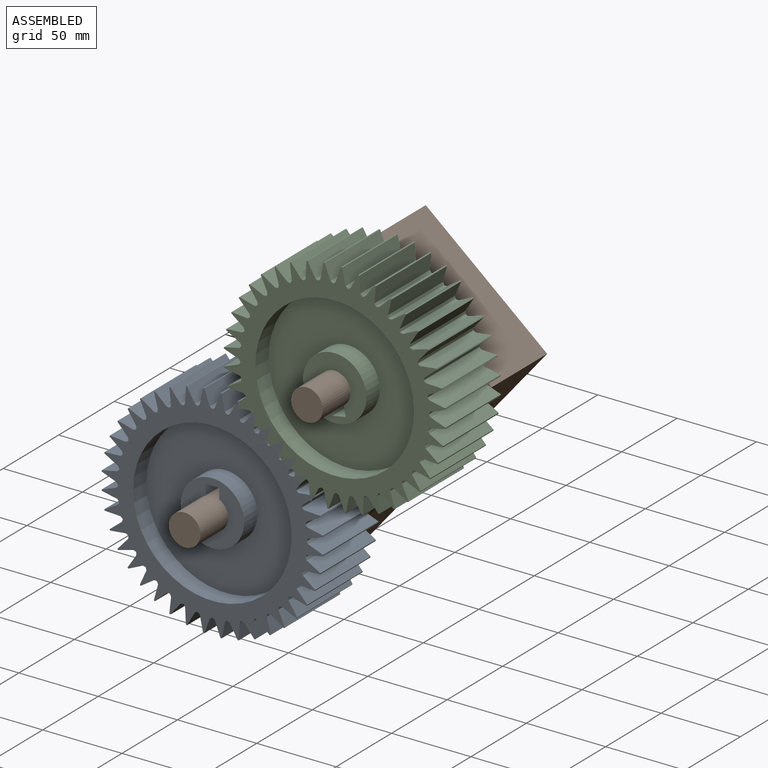
[diagram: assembled view]
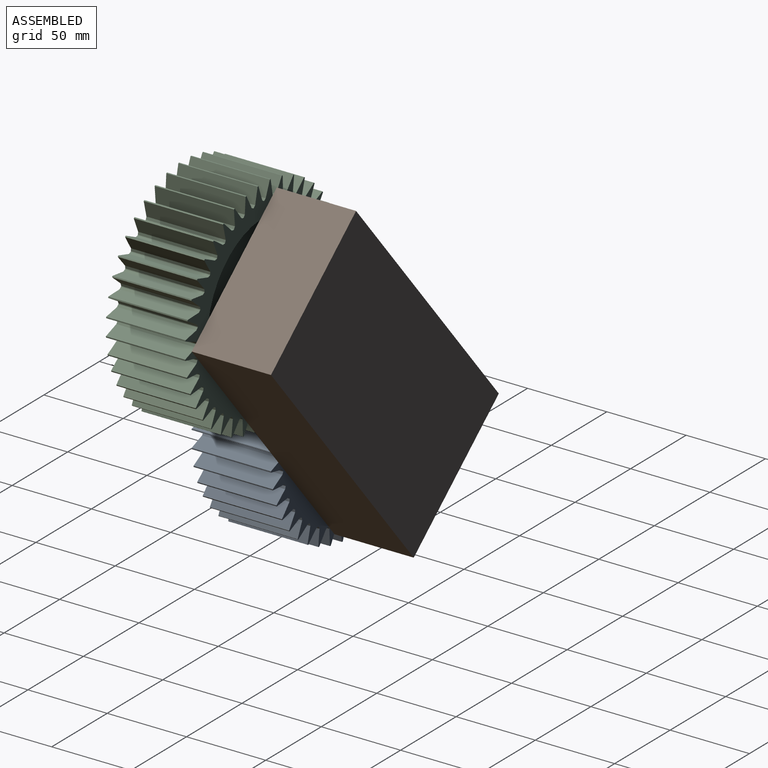
[diagram: assembled view, second angle]
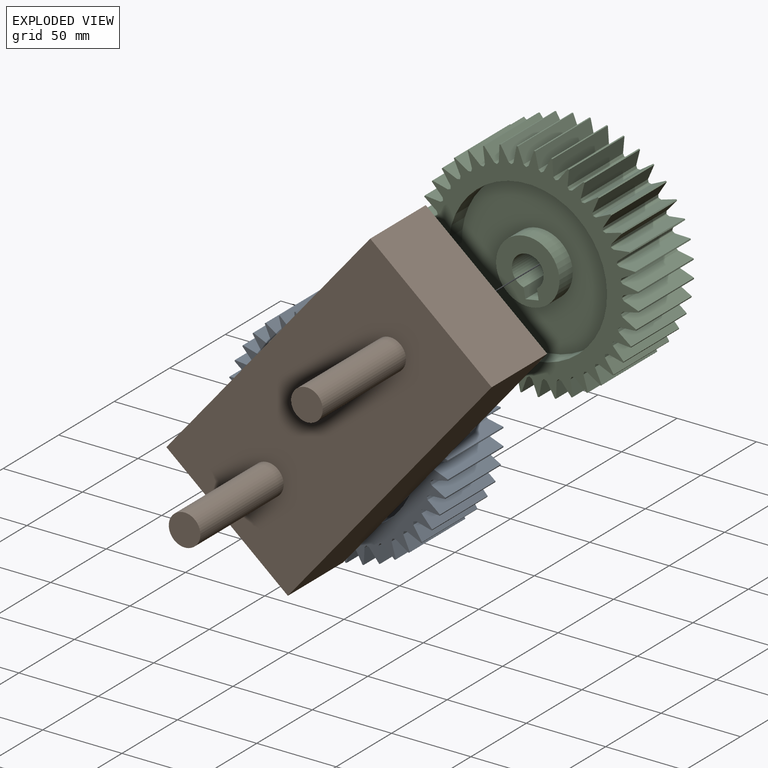
[diagram: exploded view]
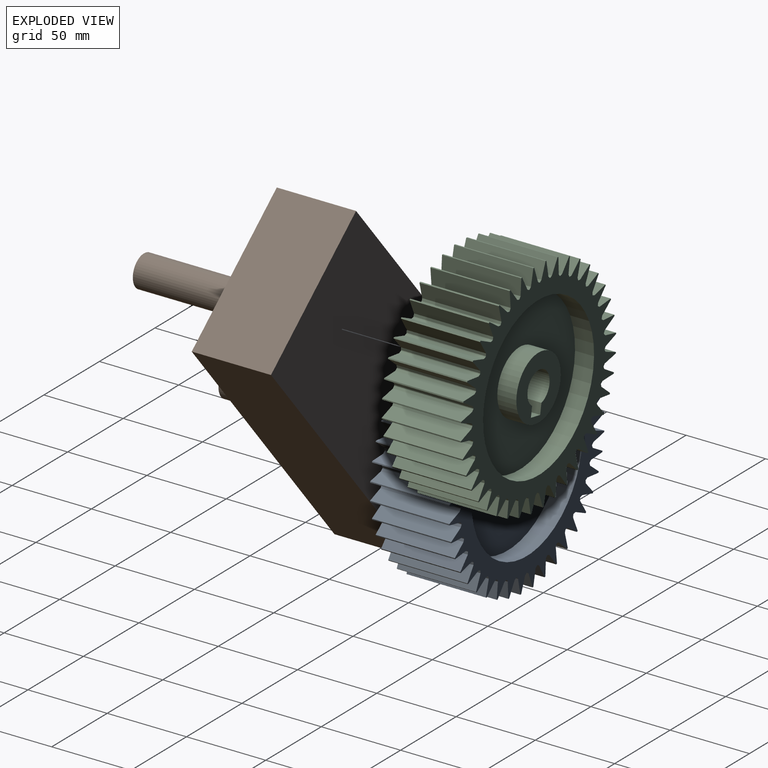
[diagram: exploded view, second angle]
ASSEMBLY  parts=3 mates=2
PART A: 254 faces, bbox 50x139.6x139.6 mm
  f0: plane 40x40mm, normal (-1,0,0), area 892.4mm2, adj f1,f238,f251,f252,f253
  f1: cylinder r=10mm len=50mm, axis (-1,0,0), area 2701.8mm2, adj f0,f245,f252,f253
  f2: cylinder r=70mm len=50mm, axis (-1,0,0), area 37.6mm2, adj f6,f236,f241,f246
  f3: plane 50x1.19mm, normal (0,0.69,-0.72), area 82.3mm2, adj f6,f7,f236,f241
  f4: plane 50x1.48mm, normal (0,-0.43,-0.9), area 82.3mm2, adj f5,f7,f236,f241
  f5: plane 50x8.7mm, normal (0,-0.87,-0.5), area 501.3mm2, adj f4,f8,f236,f241
  f6: plane 50x9.82mm, normal (0,0.98,-0.2), area 501.3mm2, adj f2,f3,f236,f241
  f7: plane 50x0.41mm, normal (0,0.16,-0.99), area 21mm2, adj f3,f4,f236,f241
  f8: cylinder r=70mm len=50mm, axis (-1,0,0), area 37.6mm2, adj f5,f12,f236,f241
  f9: plane 50x1.31mm, normal (0,0.79,-0.61), area 82.3mm2, adj f12,f13,f236,f241
  f10: plane 50x1.58mm, normal (0,-0.29,-0.96), area 82.3mm2, adj f11,f13,f236,f241
  f11: plane 50x7.82mm, normal (0,-0.78,-0.63), area 501.3mm2, adj f10,f14,f236,f241
  f12: plane 50x10.01mm, normal (0,1,-0.05), area 501.3mm2, adj f8,f9,f236,f241
  f13: plane 50x0.4mm, normal (0,0.31,-0.95), area 21mm2, adj f9,f10,f236,f241
  f14: cylinder r=70mm len=50mm, axis (-1,0,0), area 37.6mm2, adj f11,f18,f236,f241
  f15: plane 50x1.45mm, normal (0,0.88,-0.48), area 82.3mm2, adj f18,f19,f236,f241
  f16: plane 50x1.63mm, normal (0,-0.13,-0.99), area 82.3mm2, adj f17,f19,f236,f241
  f17: plane 50x7.42mm, normal (0,-0.67,-0.74), area 501.3mm2, adj f16,f20,f236,f241
  f18: plane 50x9.97mm, normal (0,0.99,0.11), area 501.3mm2, adj f14,f15,f236,f241
  f19: plane 50x0.37mm, normal (0,0.45,-0.89), area 21mm2, adj f15,f16,f236,f241
  f20: cylinder r=70mm len=50mm, axis (-1,0,0), area 37.6mm2, adj f17,f24,f236,f241
  f21: plane 50x1.55mm, normal (0,0.94,-0.33), area 82.3mm2, adj f24,f25,f236,f241
  f22: plane 50x1.65mm, normal (0,0.02,-1), area 82.3mm2, adj f23,f25,f236,f241
  f23: plane 50x8.39mm, normal (0,-0.55,-0.84), area 501.3mm2, adj f22,f26,f236,f241
  f24: plane 50x9.67mm, normal (0,0.96,0.26), area 501.3mm2, adj f20,f21,f236,f241
  f25: plane 50x0.34mm, normal (0,0.59,-0.81), area 21mm2, adj f21,f22,f236,f241
  f26: cylinder r=70mm len=50mm, axis (-1,0,0), area 37.6mm2, adj f23,f30,f236,f241
  f27: plane 50x1.62mm, normal (0,0.98,-0.18), area 82.3mm2, adj f30,f31,f236,f241
  f28: plane 50x1.62mm, normal (0,0.18,-0.98), area 82.3mm2, adj f29,f31,f236,f241
  f29: plane 50x9.14mm, normal (0,-0.41,-0.91), area 501.3mm2, adj f28,f32,f236,f241
  f30: plane 50x9.14mm, normal (0,0.91,0.41), area 501.3mm2, adj f26,f27,f236,f241
  f31: plane 50x0.3mm, normal (0,0.71,-0.71), area 21mm2, adj f27,f28,f236,f241
  f32: cylinder r=70mm len=50mm, axis (-1,0,0), area 37.6mm2, adj f29,f36,f236,f241
  f33: plane 50x1.65mm, normal (0,1,-0.02), area 82.3mm2, adj f36,f37,f236,f241
  f34: plane 50x1.55mm, normal (0,0.33,-0.94), area 82.3mm2, adj f35,f37,f236,f241
  f35: plane 50x9.67mm, normal (0,-0.26,-0.96), area 501.3mm2, adj f34,f38,f236,f241
  f36: plane 50x8.39mm, normal (0,0.84,0.55), area 501.3mm2, adj f32,f33,f236,f241
  f37: plane 50x0.34mm, normal (0,0.81,-0.59), area 21mm2, adj f33,f34,f236,f241
  f38: cylinder r=70mm len=50mm, axis (-1,0,0), area 37.6mm2, adj f35,f42,f236,f241
  f39: plane 50x1.63mm, normal (0,0.99,0.13), area 82.3mm2, adj f42,f43,f236,f241
  f40: plane 50x1.45mm, normal (0,0.48,-0.88), area 82.3mm2, adj f41,f43,f236,f241
  f41: plane 50x9.97mm, normal (0,-0.11,-0.99), area 501.3mm2, adj f40,f44,f236,f241
  f42: plane 50x7.42mm, normal (0,0.74,0.67), area 501.3mm2, adj f38,f39,f236,f241
  f43: plane 50x0.37mm, normal (0,0.89,-0.45), area 21mm2, adj f39,f40,f236,f241
  f44: cylinder r=70mm len=50mm, axis (-1,0,0), area 37.6mm2, adj f41,f48,f236,f241
  f45: plane 50x1.58mm, normal (0,0.96,0.29), area 82.3mm2, adj f48,f49,f236,f241
  f46: plane 50x1.31mm, normal (0,0.61,-0.79), area 82.3mm2, adj f47,f49,f236,f241
  f47: plane 50x10.01mm, normal (0,0.05,-1), area 501.3mm2, adj f46,f50,f236,f241
  f48: plane 50x7.82mm, normal (0,0.63,0.78), area 501.3mm2, adj f44,f45,f236,f241
  f49: plane 50x0.4mm, normal (0,0.95,-0.31), area 21mm2, adj f45,f46,f236,f241
  f50: cylinder r=70mm len=50mm, axis (-1,0,0), area 37.6mm2, adj f47,f54,f236,f241
  f51: plane 50x1.48mm, normal (0,0.9,0.43), area 82.3mm2, adj f54,f55,f236,f241
  f52: plane 50x1.19mm, normal (0,0.72,-0.69), area 82.3mm2, adj f53,f55,f236,f241
  f53: plane 50x9.82mm, normal (0,0.2,-0.98), area 501.3mm2, adj f52,f56,f236,f241
  f54: plane 50x8.7mm, normal (0,0.5,0.87), area 501.3mm2, adj f50,f51,f236,f241
  f55: plane 50x0.41mm, normal (0,0.99,-0.16), area 21mm2, adj f51,f52,f236,f241
  f56: cylinder r=70mm len=50mm, axis (-1,0,0), area 37.6mm2, adj f53,f60,f236,f241
  f57: plane 50x1.35mm, normal (0,0.82,0.57), area 82.3mm2, adj f60,f61,f236,f241
  f58: plane 50x1.35mm, normal (0,0.82,-0.57), area 82.3mm2, adj f59,f61,f236,f241
  f59: plane 50x9.37mm, normal (0,0.35,-0.94), area 501.3mm2, adj f58,f62,f236,f241
  f60: plane 50x9.37mm, normal (0,0.35,0.94), area 501.3mm2, adj f56,f57,f236,f241
  f61: plane 50x0.42mm, normal (0,1,0), area 21mm2, adj f57,f58,f236,f241
  f62: cylinder r=70mm len=50mm, axis (-1,0,0), area 37.6mm2, adj f59,f66,f236,f241
  f63: plane 50x1.19mm, normal (0,0.72,0.69), area 82.3mm2, adj f66,f67,f236,f241
  f64: plane 50x1.48mm, normal (0,0.9,-0.43), area 82.3mm2, adj f65,f67,f236,f241
  f65: plane 50x8.7mm, normal (0,0.5,-0.87), area 501.3mm2, adj f64,f68,f236,f241
  f66: plane 50x9.82mm, normal (0,0.2,0.98), area 501.3mm2, adj f62,f63,f236,f241
  f67: plane 50x0.41mm, normal (0,0.99,0.16), area 21mm2, adj f63,f64,f236,f241
  f68: cylinder r=70mm len=50mm, axis (-1,0,0), area 37.6mm2, adj f65,f72,f236,f241
  f69: plane 50x1.31mm, normal (0,0.61,0.79), area 82.3mm2, adj f72,f73,f236,f241
  f70: plane 50x1.58mm, normal (0,0.96,-0.29), area 82.3mm2, adj f71,f73,f236,f241
  f71: plane 50x7.82mm, normal (0,0.63,-0.78), area 501.3mm2, adj f70,f74,f236,f241
  f72: plane 50x10.01mm, normal (0,0.05,1), area 501.3mm2, adj f68,f69,f236,f241
  f73: plane 50x0.4mm, normal (0,0.95,0.31), area 21mm2, adj f69,f70,f236,f241
  f74: cylinder r=70mm len=50mm, axis (-1,0,0), area 37.6mm2, adj f71,f78,f236,f241
  f75: plane 50x1.45mm, normal (0,0.48,0.88), area 82.3mm2, adj f78,f79,f236,f241
  f76: plane 50x1.63mm, normal (0,0.99,-0.13), area 82.3mm2, adj f77,f79,f236,f241
  f77: plane 50x7.42mm, normal (0,0.74,-0.67), area 501.3mm2, adj f76,f80,f236,f241
  f78: plane 50x9.97mm, normal (0,-0.11,0.99), area 501.3mm2, adj f74,f75,f236,f241
  f79: plane 50x0.37mm, normal (0,0.89,0.45), area 21mm2, adj f75,f76,f236,f241
  f80: cylinder r=70mm len=50mm, axis (-1,0,0), area 37.6mm2, adj f77,f84,f236,f241
  f81: plane 50x1.55mm, normal (0,0.33,0.94), area 82.3mm2, adj f84,f85,f236,f241
  f82: plane 50x1.65mm, normal (0,1,0.02), area 82.3mm2, adj f83,f85,f236,f241
  f83: plane 50x8.39mm, normal (0,0.84,-0.55), area 501.3mm2, adj f82,f86,f236,f241
  f84: plane 50x9.67mm, normal (0,-0.26,0.96), area 501.3mm2, adj f80,f81,f236,f241
  f85: plane 50x0.34mm, normal (0,0.81,0.59), area 21mm2, adj f81,f82,f236,f241
  f86: cylinder r=70mm len=50mm, axis (-1,0,0), area 37.6mm2, adj f83,f90,f236,f241
  f87: plane 50x1.62mm, normal (0,0.18,0.98), area 82.3mm2, adj f90,f91,f236,f241
  f88: plane 50x1.62mm, normal (0,0.98,0.18), area 82.3mm2, adj f89,f91,f236,f241
  f89: plane 50x9.14mm, normal (0,0.91,-0.41), area 501.3mm2, adj f88,f92,f236,f241
  f90: plane 50x9.14mm, normal (0,-0.41,0.91), area 501.3mm2, adj f86,f87,f236,f241
  f91: plane 50x0.3mm, normal (0,0.71,0.71), area 21mm2, adj f87,f88,f236,f241
  f92: cylinder r=70mm len=50mm, axis (-1,0,0), area 37.6mm2, adj f89,f96,f236,f241
  f93: plane 50x1.65mm, normal (0,0.02,1), area 82.3mm2, adj f96,f97,f236,f241
  f94: plane 50x1.55mm, normal (0,0.94,0.33), area 82.3mm2, adj f95,f97,f236,f241
  f95: plane 50x9.67mm, normal (0,0.96,-0.26), area 501.3mm2, adj f94,f98,f236,f241
  f96: plane 50x8.39mm, normal (0,-0.55,0.84), area 501.3mm2, adj f92,f93,f236,f241
  f97: plane 50x0.34mm, normal (0,0.59,0.81), area 21mm2, adj f93,f94,f236,f241
  f98: cylinder r=70mm len=50mm, axis (-1,0,0), area 37.6mm2, adj f95,f102,f236,f241
  f99: plane 50x1.63mm, normal (0,-0.13,0.99), area 82.3mm2, adj f102,f103,f236,f241
  f100: plane 50x1.45mm, normal (0,0.88,0.48), area 82.3mm2, adj f101,f103,f236,f241
  f101: plane 50x9.97mm, normal (0,0.99,-0.11), area 501.3mm2, adj f100,f104,f236,f241
  f102: plane 50x7.42mm, normal (0,-0.67,0.74), area 501.3mm2, adj f98,f99,f236,f241
  f103: plane 50x0.37mm, normal (0,0.45,0.89), area 21mm2, adj f99,f100,f236,f241
  f104: cylinder r=70mm len=50mm, axis (-1,0,0), area 37.6mm2, adj f101,f108,f236,f241
  f105: plane 50x1.58mm, normal (0,-0.29,0.96), area 82.3mm2, adj f108,f109,f236,f241
  f106: plane 50x1.31mm, normal (0,0.79,0.61), area 82.3mm2, adj f107,f109,f236,f241
  f107: plane 50x10.01mm, normal (0,1,0.05), area 501.3mm2, adj f106,f110,f236,f241
  f108: plane 50x7.82mm, normal (0,-0.78,0.63), area 501.3mm2, adj f104,f105,f236,f241
  f109: plane 50x0.4mm, normal (0,0.31,0.95), area 21mm2, adj f105,f106,f236,f241
  f110: cylinder r=70mm len=50mm, axis (-1,0,0), area 37.6mm2, adj f107,f114,f236,f241
  f111: plane 50x1.48mm, normal (0,-0.43,0.9), area 82.3mm2, adj f114,f115,f236,f241
  f112: plane 50x1.19mm, normal (0,0.69,0.72), area 82.3mm2, adj f113,f115,f236,f241
  f113: plane 50x9.82mm, normal (0,0.98,0.2), area 501.3mm2, adj f112,f116,f236,f241
  f114: plane 50x8.7mm, normal (0,-0.87,0.5), area 501.3mm2, adj f110,f111,f236,f241
  f115: plane 50x0.41mm, normal (0,0.16,0.99), area 21mm2, adj f111,f112,f236,f241
  f116: cylinder r=70mm len=50mm, axis (-1,0,0), area 37.6mm2, adj f113,f120,f236,f241
  f117: plane 50x1.35mm, normal (0,-0.57,0.82), area 82.3mm2, adj f120,f121,f236,f241
  f118: plane 50x1.35mm, normal (0,0.57,0.82), area 82.3mm2, adj f119,f121,f236,f241
  f119: plane 50x9.37mm, normal (0,0.94,0.35), area 501.3mm2, adj f118,f122,f236,f241
  f120: plane 50x9.37mm, normal (0,-0.94,0.35), area 501.3mm2, adj f116,f117,f236,f241
  f121: plane 50x0.42mm, normal (0,0,1), area 21mm2, adj f117,f118,f236,f241
  f122: cylinder r=70mm len=50mm, axis (-1,0,0), area 37.6mm2, adj f119,f126,f236,f241
  f123: plane 50x1.19mm, normal (0,-0.69,0.72), area 82.3mm2, adj f126,f127,f236,f241
  f124: plane 50x1.48mm, normal (0,0.43,0.9), area 82.3mm2, adj f125,f127,f236,f241
  f125: plane 50x8.7mm, normal (0,0.87,0.5), area 501.3mm2, adj f124,f128,f236,f241
  f126: plane 50x9.82mm, normal (0,-0.98,0.2), area 501.3mm2, adj f122,f123,f236,f241
  f127: plane 50x0.41mm, normal (0,-0.16,0.99), area 21mm2, adj f123,f124,f236,f241
  f128: cylinder r=70mm len=50mm, axis (-1,0,0), area 37.6mm2, adj f125,f132,f236,f241
  f129: plane 50x1.31mm, normal (0,-0.79,0.61), area 82.3mm2, adj f132,f133,f236,f241
  f130: plane 50x1.58mm, normal (0,0.29,0.96), area 82.3mm2, adj f131,f133,f236,f241
  f131: plane 50x7.82mm, normal (0,0.78,0.63), area 501.3mm2, adj f130,f134,f236,f241
  f132: plane 50x10.01mm, normal (0,-1,0.05), area 501.3mm2, adj f128,f129,f236,f241
  f133: plane 50x0.4mm, normal (0,-0.31,0.95), area 21mm2, adj f129,f130,f236,f241
  f134: cylinder r=70mm len=50mm, axis (-1,0,0), area 37.6mm2, adj f131,f138,f236,f241
  f135: plane 50x1.45mm, normal (0,-0.88,0.48), area 82.3mm2, adj f138,f139,f236,f241
  f136: plane 50x1.63mm, normal (0,0.13,0.99), area 82.3mm2, adj f137,f139,f236,f241
  f137: plane 50x7.42mm, normal (0,0.67,0.74), area 501.3mm2, adj f136,f140,f236,f241
  f138: plane 50x9.97mm, normal (0,-0.99,-0.11), area 501.3mm2, adj f134,f135,f236,f241
  f139: plane 50x0.37mm, normal (0,-0.45,0.89), area 21mm2, adj f135,f136,f236,f241
  f140: cylinder r=70mm len=50mm, axis (-1,0,0), area 37.6mm2, adj f137,f144,f236,f241
  f141: plane 50x1.55mm, normal (0,-0.94,0.33), area 82.3mm2, adj f144,f145,f236,f241
  f142: plane 50x1.65mm, normal (0,-0.02,1), area 82.3mm2, adj f143,f145,f236,f241
  f143: plane 50x8.39mm, normal (0,0.55,0.84), area 501.3mm2, adj f142,f146,f236,f241
  f144: plane 50x9.67mm, normal (0,-0.96,-0.26), area 501.3mm2, adj f140,f141,f236,f241
  f145: plane 50x0.34mm, normal (0,-0.59,0.81), area 21mm2, adj f141,f142,f236,f241
  f146: cylinder r=70mm len=50mm, axis (-1,0,0), area 37.6mm2, adj f143,f150,f236,f241
  f147: plane 50x1.62mm, normal (0,-0.98,0.18), area 82.3mm2, adj f150,f151,f236,f241
  f148: plane 50x1.62mm, normal (0,-0.18,0.98), area 82.3mm2, adj f149,f151,f236,f241
  f149: plane 50x9.14mm, normal (0,0.41,0.91), area 501.3mm2, adj f148,f152,f236,f241
  f150: plane 50x9.14mm, normal (0,-0.91,-0.41), area 501.3mm2, adj f146,f147,f236,f241
  f151: plane 50x0.3mm, normal (0,-0.71,0.71), area 21mm2, adj f147,f148,f236,f241
  f152: cylinder r=70mm len=50mm, axis (-1,0,0), area 37.6mm2, adj f149,f156,f236,f241
  f153: plane 50x1.65mm, normal (0,-1,0.02), area 82.3mm2, adj f156,f157,f236,f241
  f154: plane 50x1.55mm, normal (0,-0.33,0.94), area 82.3mm2, adj f155,f157,f236,f241
  f155: plane 50x9.67mm, normal (0,0.26,0.96), area 501.3mm2, adj f154,f158,f236,f241
  f156: plane 50x8.39mm, normal (0,-0.84,-0.55), area 501.3mm2, adj f152,f153,f236,f241
  f157: plane 50x0.34mm, normal (0,-0.81,0.59), area 21mm2, adj f153,f154,f236,f241
  f158: cylinder r=70mm len=50mm, axis (-1,0,0), area 37.6mm2, adj f155,f162,f236,f241
  f159: plane 50x1.63mm, normal (0,-0.99,-0.13), area 82.3mm2, adj f162,f163,f236,f241
  f160: plane 50x1.45mm, normal (0,-0.48,0.88), area 82.3mm2, adj f161,f163,f236,f241
  f161: plane 50x9.97mm, normal (0,0.11,0.99), area 501.3mm2, adj f160,f164,f236,f241
  f162: plane 50x7.42mm, normal (0,-0.74,-0.67), area 501.3mm2, adj f158,f159,f236,f241
  f163: plane 50x0.37mm, normal (0,-0.89,0.45), area 21mm2, adj f159,f160,f236,f241
  f164: cylinder r=70mm len=50mm, axis (-1,0,0), area 37.6mm2, adj f161,f168,f236,f241
  f165: plane 50x1.58mm, normal (0,-0.96,-0.29), area 82.3mm2, adj f168,f169,f236,f241
  f166: plane 50x1.31mm, normal (0,-0.61,0.79), area 82.3mm2, adj f167,f169,f236,f241
  f167: plane 50x10.01mm, normal (0,-0.05,1), area 501.3mm2, adj f166,f170,f236,f241
  f168: plane 50x7.82mm, normal (0,-0.63,-0.78), area 501.3mm2, adj f164,f165,f236,f241
  f169: plane 50x0.4mm, normal (0,-0.95,0.31), area 21mm2, adj f165,f166,f236,f241
  f170: cylinder r=70mm len=50mm, axis (-1,0,0), area 37.6mm2, adj f167,f174,f236,f241
  f171: plane 50x1.48mm, normal (0,-0.9,-0.43), area 82.3mm2, adj f174,f175,f236,f241
  f172: plane 50x1.19mm, normal (0,-0.72,0.69), area 82.3mm2, adj f173,f175,f236,f241
  f173: plane 50x9.82mm, normal (0,-0.2,0.98), area 501.3mm2, adj f172,f176,f236,f241
  f174: plane 50x8.7mm, normal (0,-0.5,-0.87), area 501.3mm2, adj f170,f171,f236,f241
  f175: plane 50x0.41mm, normal (0,-0.99,0.16), area 21mm2, adj f171,f172,f236,f241
  f176: cylinder r=70mm len=50mm, axis (-1,0,0), area 37.6mm2, adj f173,f180,f236,f241
  f177: plane 50x1.35mm, normal (0,-0.82,-0.57), area 82.3mm2, adj f180,f181,f236,f241
  f178: plane 50x1.35mm, normal (0,-0.82,0.57), area 82.3mm2, adj f179,f181,f236,f241
  f179: plane 50x9.37mm, normal (0,-0.35,0.94), area 501.3mm2, adj f178,f182,f236,f241
  f180: plane 50x9.37mm, normal (0,-0.35,-0.94), area 501.3mm2, adj f176,f177,f236,f241
  f181: plane 50x0.42mm, normal (0,-1,0), area 21mm2, adj f177,f178,f236,f241
  f182: cylinder r=70mm len=50mm, axis (-1,0,0), area 37.6mm2, adj f179,f186,f236,f241
  f183: plane 50x1.19mm, normal (0,-0.72,-0.69), area 82.3mm2, adj f186,f187,f236,f241
  f184: plane 50x1.48mm, normal (0,-0.9,0.43), area 82.3mm2, adj f185,f187,f236,f241
  f185: plane 50x8.7mm, normal (0,-0.5,0.87), area 501.3mm2, adj f184,f188,f236,f241
  f186: plane 50x9.82mm, normal (0,-0.2,-0.98), area 501.3mm2, adj f182,f183,f236,f241
  f187: plane 50x0.41mm, normal (0,-0.99,-0.16), area 21mm2, adj f183,f184,f236,f241
  f188: cylinder r=70mm len=50mm, axis (-1,0,0), area 37.6mm2, adj f185,f192,f236,f241
  f189: plane 50x1.31mm, normal (0,-0.61,-0.79), area 82.3mm2, adj f192,f193,f236,f241
  f190: plane 50x1.58mm, normal (0,-0.96,0.29), area 82.3mm2, adj f191,f193,f236,f241
  f191: plane 50x7.82mm, normal (0,-0.63,0.78), area 501.3mm2, adj f190,f194,f236,f241
  f192: plane 50x10.01mm, normal (0,-0.05,-1), area 501.3mm2, adj f188,f189,f236,f241
  f193: plane 50x0.4mm, normal (0,-0.95,-0.31), area 21mm2, adj f189,f190,f236,f241
  f194: cylinder r=70mm len=50mm, axis (-1,0,0), area 37.6mm2, adj f191,f198,f236,f241
  f195: plane 50x1.45mm, normal (0,-0.48,-0.88), area 82.3mm2, adj f198,f199,f236,f241
  f196: plane 50x1.63mm, normal (0,-0.99,0.13), area 82.3mm2, adj f197,f199,f236,f241
  f197: plane 50x7.42mm, normal (0,-0.74,0.67), area 501.3mm2, adj f196,f200,f236,f241
  f198: plane 50x9.97mm, normal (0,0.11,-0.99), area 501.3mm2, adj f194,f195,f236,f241
  f199: plane 50x0.37mm, normal (0,-0.89,-0.45), area 21mm2, adj f195,f196,f236,f241
  f200: cylinder r=70mm len=50mm, axis (-1,0,0), area 37.6mm2, adj f197,f204,f236,f241
  f201: plane 50x1.55mm, normal (0,-0.33,-0.94), area 82.3mm2, adj f204,f205,f236,f241
  f202: plane 50x1.65mm, normal (0,-1,-0.02), area 82.3mm2, adj f203,f205,f236,f241
  f203: plane 50x8.39mm, normal (0,-0.84,0.55), area 501.3mm2, adj f202,f206,f236,f241
  f204: plane 50x9.67mm, normal (0,0.26,-0.96), area 501.3mm2, adj f200,f201,f236,f241
  f205: plane 50x0.34mm, normal (0,-0.81,-0.59), area 21mm2, adj f201,f202,f236,f241
  f206: cylinder r=70mm len=50mm, axis (-1,0,0), area 37.6mm2, adj f203,f210,f236,f241
  f207: plane 50x1.62mm, normal (0,-0.18,-0.98), area 82.3mm2, adj f210,f211,f236,f241
  f208: plane 50x1.62mm, normal (0,-0.98,-0.18), area 82.3mm2, adj f209,f211,f236,f241
  f209: plane 50x9.14mm, normal (0,-0.91,0.41), area 501.3mm2, adj f208,f212,f236,f241
  f210: plane 50x9.14mm, normal (0,0.41,-0.91), area 501.3mm2, adj f206,f207,f236,f241
  f211: plane 50x0.3mm, normal (0,-0.71,-0.71), area 21mm2, adj f207,f208,f236,f241
  f212: cylinder r=70mm len=50mm, axis (-1,0,0), area 37.6mm2, adj f209,f216,f236,f241
  f213: plane 50x1.65mm, normal (0,-0.02,-1), area 82.3mm2, adj f216,f217,f236,f241
  f214: plane 50x1.55mm, normal (0,-0.94,-0.33), area 82.3mm2, adj f215,f217,f236,f241
  f215: plane 50x9.67mm, normal (0,-0.96,0.26), area 501.3mm2, adj f214,f218,f236,f241
  f216: plane 50x8.39mm, normal (0,0.55,-0.84), area 501.3mm2, adj f212,f213,f236,f241
  f217: plane 50x0.34mm, normal (0,-0.59,-0.81), area 21mm2, adj f213,f214,f236,f241
  f218: cylinder r=70mm len=50mm, axis (-1,0,0), area 37.6mm2, adj f215,f222,f236,f241
  f219: plane 50x1.63mm, normal (0,0.13,-0.99), area 82.3mm2, adj f222,f223,f236,f241
  f220: plane 50x1.45mm, normal (0,-0.88,-0.48), area 82.3mm2, adj f221,f223,f236,f241
  f221: plane 50x9.97mm, normal (0,-0.99,0.11), area 501.3mm2, adj f220,f224,f236,f241
  f222: plane 50x7.42mm, normal (0,0.67,-0.74), area 501.3mm2, adj f218,f219,f236,f241
  f223: plane 50x0.37mm, normal (0,-0.45,-0.89), area 21mm2, adj f219,f220,f236,f241
  f224: cylinder r=70mm len=50mm, axis (-1,0,0), area 37.6mm2, adj f221,f228,f236,f241
  f225: plane 50x1.58mm, normal (0,0.29,-0.96), area 82.3mm2, adj f228,f229,f236,f241
  f226: plane 50x1.31mm, normal (0,-0.79,-0.61), area 82.3mm2, adj f227,f229,f236,f241
  f227: plane 50x10.01mm, normal (0,-1,-0.05), area 501.3mm2, adj f226,f230,f236,f241
  f228: plane 50x7.82mm, normal (0,0.78,-0.63), area 501.3mm2, adj f224,f225,f236,f241
  f229: plane 50x0.4mm, normal (0,-0.31,-0.95), area 21mm2, adj f225,f226,f236,f241
  f230: cylinder r=70mm len=50mm, axis (-1,0,0), area 37.6mm2, adj f227,f234,f236,f241
  f231: plane 50x1.48mm, normal (0,0.43,-0.9), area 82.3mm2, adj f234,f235,f236,f241
  f232: plane 50x1.19mm, normal (0,-0.69,-0.72), area 82.3mm2, adj f233,f235,f236,f241
  f233: plane 50x9.82mm, normal (0,-0.98,-0.2), area 501.3mm2, adj f232,f236,f237,f241
  f234: plane 50x8.7mm, normal (0,0.87,-0.5), area 501.3mm2, adj f230,f231,f236,f241
  f235: plane 50x0.41mm, normal (0,-0.16,-0.99), area 21mm2, adj f231,f232,f236,f241
  f236: plane 139.63x139.63mm, normal (-1,0,0), area 4916.8mm2, adj f2,f3,f4,f5,f6,f7,f8,f9
  f237: cylinder r=70mm len=50mm, axis (-1,0,0), area 37.6mm2, adj f233,f236,f241,f247
  f238: cylinder r=20mm len=40mm, axis (-1,0,0), area 1508mm2, adj f0,f239
  f239: plane 100x100mm, normal (-1,0,0), area 6597.3mm2, adj f238,f240
  f240: cylinder r=50mm len=100mm, axis (-1,0,0), area 3769.9mm2, adj f236,f239
  f241: plane 139.63x139.63mm, normal (1,0,0), area 4916.8mm2, adj f2,f3,f4,f5,f6,f7,f8,f9
  f242: cylinder r=50mm len=100mm, axis (-1,0,0), area 3769.9mm2, adj f241,f243
  f243: plane 100x100mm, normal (1,0,0), area 6597.3mm2, adj f242,f244
  f244: cylinder r=20mm len=40mm, axis (-1,0,0), area 1508mm2, adj f243,f245
  f245: plane 40x40mm, normal (1,0,0), area 892.4mm2, adj f1,f244,f251,f252,f253
  f246: plane 50x9.37mm, normal (0,-0.94,-0.35), area 501.3mm2, adj f2,f236,f241,f249
  f247: plane 50x9.37mm, normal (0,0.94,-0.35), area 501.3mm2, adj f236,f237,f241,f250
  f248: plane 50x0.42mm, normal (0,0,-1), area 21mm2, adj f236,f241,f249,f250
  f249: plane 50x1.35mm, normal (0,-0.57,-0.82), area 82.3mm2, adj f236,f241,f246,f248
  f250: plane 50x1.35mm, normal (0,0.57,-0.82), area 82.3mm2, adj f236,f241,f247,f248
  f251: plane 50x8.52mm, normal (0,-1,0), area 425.8mm2, adj f0,f245,f252,f253
  f252: plane 50x6.52mm, normal (0,0,1), area 325.9mm2, adj f0,f1,f245,f251
  f253: plane 50x6.52mm, normal (0,0,-1), area 325.9mm2, adj f0,f1,f245,f251
PART B: 10 faces, bbox 200x125x100 mm
  f0: plane 200x50mm, normal (0,0,1), area 10000mm2, adj f1,f3,f4,f5
  f1: plane 100x50mm, normal (-1,0,0), area 5000mm2, adj f0,f2,f4,f5
  f2: plane 200x50mm, normal (0,0,-1), area 10000mm2, adj f1,f3,f4,f5
  f3: plane 100x50mm, normal (1,0,0), area 5000mm2, adj f0,f2,f4,f5
  f4: plane 200x100mm, normal (0,-1,0), area 19374.8mm2, adj f0,f1,f2,f3,f6,f8
  f5: plane 200x100mm, normal (0,1,0), area 20000mm2, adj f0,f1,f2,f3
  f6: cylinder r=9.97mm len=75mm, axis (0,1,0), area 4700.6mm2, adj f4,f7
  f7: plane 19.95x19.95mm, normal (0,-1,0), area 312.6mm2, adj f6
  f8: cylinder r=9.97mm len=75mm, axis (0,1,0), area 4700.6mm2, adj f4,f9
  f9: plane 19.95x19.95mm, normal (0,-1,0), area 312.6mm2, adj f8
PART C: same geometry as A
PLACE A rot(axis=(0.58,-0.58,-0.58),120deg) t=(-187.92,-102.29,35.74)mm
PLACE B rot(axis=(0,1,0),130deg) t=(-158.39,-14.43,116.95)mm
PLACE C rot(axis=(-0.61,-0.61,0.51),125.9deg) t=(-110.78,-76.57,127.66)mm
MATE revolute A.f1 <-> B.f8  axis (0,1,0) through (-187.92,-64.43,35.74)mm
MATE revolute C.f1 <-> B.f6  axis (0,1,0) through (-110.78,-64.43,127.66)mm
